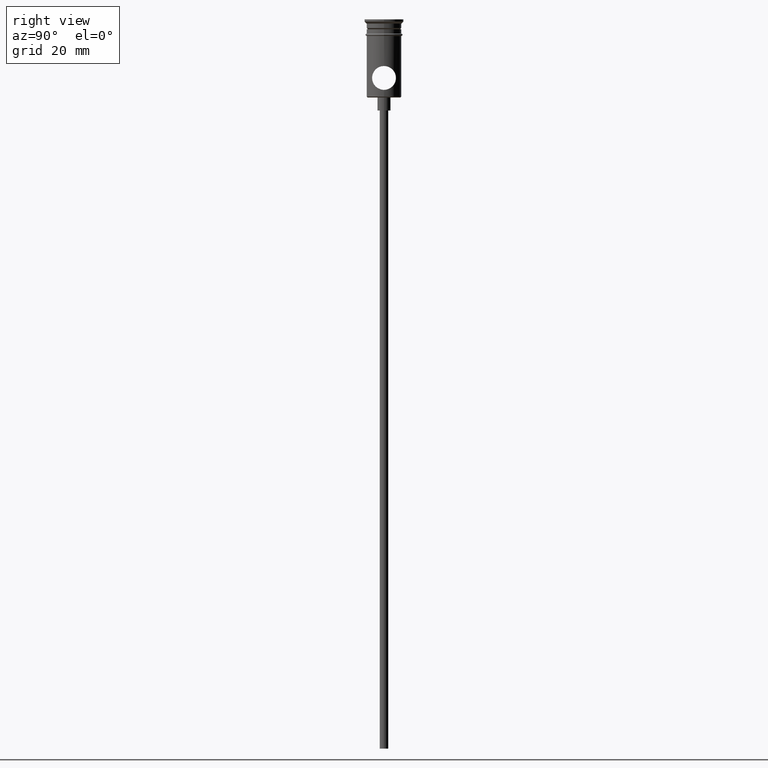
[diagram: clean part render]
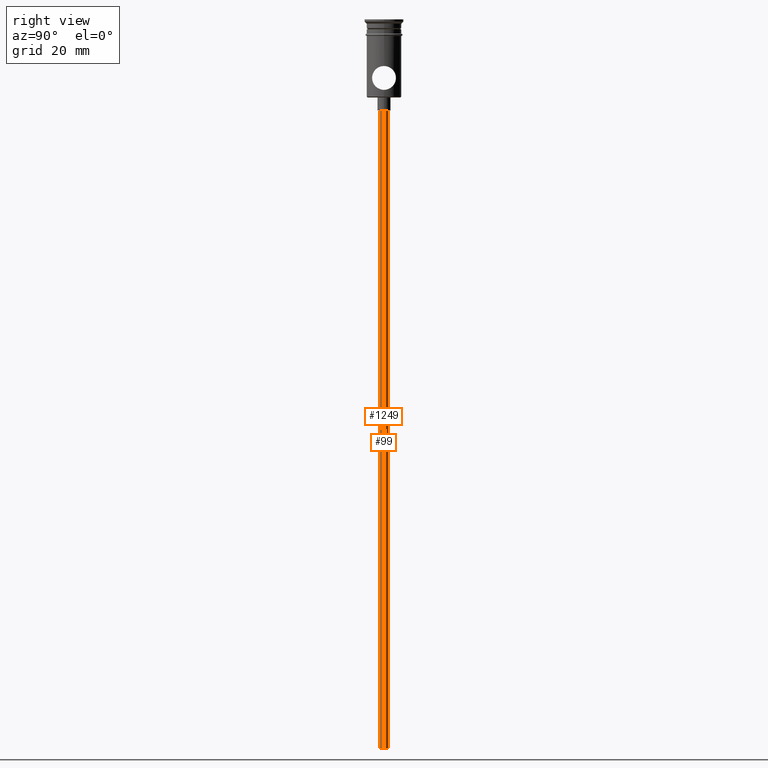
[diagram: same view with one multi-face feature highlighted, each face labeled with its STEP entity id]
A machine part, right view. The highlighted faces form ONE feature: a constant-radius fillet chain: 2 tangent blend faces with common blend radius 1 mm. The faces share edges in the B-rep.
Their STEP definitions:
[1] entity #99 (Cylinder):
#8 = ORIENTED_EDGE ( 'NONE', *, *, #391, .T. ) ;
#17 = VERTEX_POINT ( 'NONE', #936 ) ;
#91 = CARTESIAN_POINT ( 'NONE',  ( -0.9999999999999997780, 1.224646799147352961E-16, -167.9999999999999716 ) ) ;
#99 = ADVANCED_FACE ( 'NONE', ( #860 ), #1288, .T. ) ;
#122 = CARTESIAN_POINT ( 'NONE',  ( 0.9999999999999997780, 0.000000000000000000, -167.9999999999999716 ) ) ;
#160 = ORIENTED_EDGE ( 'NONE', *, *, #1117, .F. ) ;
#200 = LINE ( 'NONE', #91, #313 ) ;
#235 = VERTEX_POINT ( 'NONE', #1240 ) ;
#248 = DIRECTION ( 'NONE',  ( 0.000000000000000000, 0.000000000000000000, -1.000000000000000000 ) ) ;
#313 = VECTOR ( 'NONE', #927, 1000.000000000000000 ) ;
#314 = CIRCLE ( 'NONE', #379, 0.9999999999999997780 ) ;
#340 = AXIS2_PLACEMENT_3D ( 'NONE', #573, #248, #366 ) ;
#366 = DIRECTION ( 'NONE',  ( -1.000000000000000000, 0.000000000000000000, 0.000000000000000000 ) ) ;
#367 = DIRECTION ( 'NONE',  ( -1.000000000000000000, 0.000000000000000000, 0.000000000000000000 ) ) ;
#379 = AXIS2_PLACEMENT_3D ( 'NONE', #1011, #1345, #367 ) ;
#391 = EDGE_CURVE ( 'NONE', #235, #17, #948, .T. ) ;
#397 = VERTEX_POINT ( 'NONE', #122 ) ;
#404 = DIRECTION ( 'NONE',  ( -0.000000000000000000, -0.000000000000000000, 1.000000000000000000 ) ) ;
#561 = EDGE_CURVE ( 'NONE', #397, #17, #1169, .T. ) ;
#573 = CARTESIAN_POINT ( 'NONE',  ( 0.000000000000000000, 0.000000000000000000, -20.99999999999999645 ) ) ;
#618 = DIRECTION ( 'NONE',  ( -0.000000000000000000, -0.000000000000000000, 1.000000000000000000 ) ) ;
#710 = CARTESIAN_POINT ( 'NONE',  ( -0.9999999999999997780, 1.224646799147352961E-16, -167.9999999999999716 ) ) ;
#860 = FACE_OUTER_BOUND ( 'NONE', #1034, .T. ) ;
#887 = ORIENTED_EDGE ( 'NONE', *, *, #958, .T. ) ;
#927 = DIRECTION ( 'NONE',  ( -0.000000000000000000, -0.000000000000000000, 1.000000000000000000 ) ) ;
#936 = CARTESIAN_POINT ( 'NONE',  ( 0.9999999999999997780, 0.000000000000000000, -20.99999999999999645 ) ) ;
#943 = CARTESIAN_POINT ( 'NONE',  ( 0.000000000000000000, 0.000000000000000000, -167.9999999999999716 ) ) ;
#948 = CIRCLE ( 'NONE', #340, 0.9999999999999997780 ) ;
#958 = EDGE_CURVE ( 'NONE', #1279, #235, #200, .T. ) ;
#962 = ORIENTED_EDGE ( 'NONE', *, *, #561, .F. ) ;
#1011 = CARTESIAN_POINT ( 'NONE',  ( 0.000000000000000000, 0.000000000000000000, -167.9999999999999716 ) ) ;
#1034 = EDGE_LOOP ( 'NONE', ( #160, #887, #8, #962 ) ) ;
#1043 = DIRECTION ( 'NONE',  ( 1.000000000000000000, 0.000000000000000000, 0.000000000000000000 ) ) ;
#1117 = EDGE_CURVE ( 'NONE', #1279, #397, #314, .T. ) ;
#1169 = LINE ( 'NONE', #1386, #1225 ) ;
#1225 = VECTOR ( 'NONE', #404, 1000.000000000000000 ) ;
#1240 = CARTESIAN_POINT ( 'NONE',  ( -0.9999999999999997780, 1.224646799147352961E-16, -20.99999999999999645 ) ) ;
#1279 = VERTEX_POINT ( 'NONE', #710 ) ;
#1288 = CYLINDRICAL_SURFACE ( 'NONE', #1316, 0.9999999999999997780 ) ;
#1316 = AXIS2_PLACEMENT_3D ( 'NONE', #943, #618, #1043 ) ;
#1345 = DIRECTION ( 'NONE',  ( 0.000000000000000000, 0.000000000000000000, -1.000000000000000000 ) ) ;
#1386 = CARTESIAN_POINT ( 'NONE',  ( 0.9999999999999997780, 0.000000000000000000, -167.9999999999999716 ) ) ;
[2] entity #1249 (Cylinder):
#17 = VERTEX_POINT ( 'NONE', #936 ) ;
#91 = CARTESIAN_POINT ( 'NONE',  ( -0.9999999999999997780, 1.224646799147352961E-16, -167.9999999999999716 ) ) ;
#113 = CIRCLE ( 'NONE', #1229, 0.9999999999999997780 ) ;
#122 = CARTESIAN_POINT ( 'NONE',  ( 0.9999999999999997780, 0.000000000000000000, -167.9999999999999716 ) ) ;
#183 = CYLINDRICAL_SURFACE ( 'NONE', #706, 0.9999999999999997780 ) ;
#189 = DIRECTION ( 'NONE',  ( 0.000000000000000000, 0.000000000000000000, -1.000000000000000000 ) ) ;
#200 = LINE ( 'NONE', #91, #313 ) ;
#222 = ORIENTED_EDGE ( 'NONE', *, *, #958, .F. ) ;
#234 = ORIENTED_EDGE ( 'NONE', *, *, #1254, .F. ) ;
#235 = VERTEX_POINT ( 'NONE', #1240 ) ;
#302 = DIRECTION ( 'NONE',  ( -1.000000000000000000, 0.000000000000000000, 0.000000000000000000 ) ) ;
#313 = VECTOR ( 'NONE', #927, 1000.000000000000000 ) ;
#395 = CARTESIAN_POINT ( 'NONE',  ( 0.000000000000000000, 0.000000000000000000, -167.9999999999999716 ) ) ;
#397 = VERTEX_POINT ( 'NONE', #122 ) ;
#404 = DIRECTION ( 'NONE',  ( -0.000000000000000000, -0.000000000000000000, 1.000000000000000000 ) ) ;
#478 = CARTESIAN_POINT ( 'NONE',  ( 0.000000000000000000, 0.000000000000000000, -167.9999999999999716 ) ) ;
#503 = CARTESIAN_POINT ( 'NONE',  ( 0.000000000000000000, 0.000000000000000000, -20.99999999999999645 ) ) ;
#545 = EDGE_LOOP ( 'NONE', ( #222, #234, #726, #816 ) ) ;
#561 = EDGE_CURVE ( 'NONE', #397, #17, #1169, .T. ) ;
#661 = CIRCLE ( 'NONE', #1086, 0.9999999999999997780 ) ;
#699 = DIRECTION ( 'NONE',  ( -1.000000000000000000, 0.000000000000000000, 0.000000000000000000 ) ) ;
#706 = AXIS2_PLACEMENT_3D ( 'NONE', #395, #1046, #1365 ) ;
#710 = CARTESIAN_POINT ( 'NONE',  ( -0.9999999999999997780, 1.224646799147352961E-16, -167.9999999999999716 ) ) ;
#726 = ORIENTED_EDGE ( 'NONE', *, *, #561, .T. ) ;
#811 = DIRECTION ( 'NONE',  ( 0.000000000000000000, 0.000000000000000000, -1.000000000000000000 ) ) ;
#816 = ORIENTED_EDGE ( 'NONE', *, *, #1017, .T. ) ;
#833 = FACE_OUTER_BOUND ( 'NONE', #545, .T. ) ;
#927 = DIRECTION ( 'NONE',  ( -0.000000000000000000, -0.000000000000000000, 1.000000000000000000 ) ) ;
#936 = CARTESIAN_POINT ( 'NONE',  ( 0.9999999999999997780, 0.000000000000000000, -20.99999999999999645 ) ) ;
#958 = EDGE_CURVE ( 'NONE', #1279, #235, #200, .T. ) ;
#1017 = EDGE_CURVE ( 'NONE', #17, #235, #661, .T. ) ;
#1046 = DIRECTION ( 'NONE',  ( -0.000000000000000000, -0.000000000000000000, 1.000000000000000000 ) ) ;
#1086 = AXIS2_PLACEMENT_3D ( 'NONE', #503, #189, #302 ) ;
#1169 = LINE ( 'NONE', #1386, #1225 ) ;
#1225 = VECTOR ( 'NONE', #404, 1000.000000000000000 ) ;
#1229 = AXIS2_PLACEMENT_3D ( 'NONE', #478, #811, #699 ) ;
#1240 = CARTESIAN_POINT ( 'NONE',  ( -0.9999999999999997780, 1.224646799147352961E-16, -20.99999999999999645 ) ) ;
#1249 = ADVANCED_FACE ( 'NONE', ( #833 ), #183, .T. ) ;
#1254 = EDGE_CURVE ( 'NONE', #397, #1279, #113, .T. ) ;
#1279 = VERTEX_POINT ( 'NONE', #710 ) ;
#1365 = DIRECTION ( 'NONE',  ( 1.000000000000000000, 0.000000000000000000, 0.000000000000000000 ) ) ;
#1386 = CARTESIAN_POINT ( 'NONE',  ( 0.9999999999999997780, 0.000000000000000000, -167.9999999999999716 ) ) ;